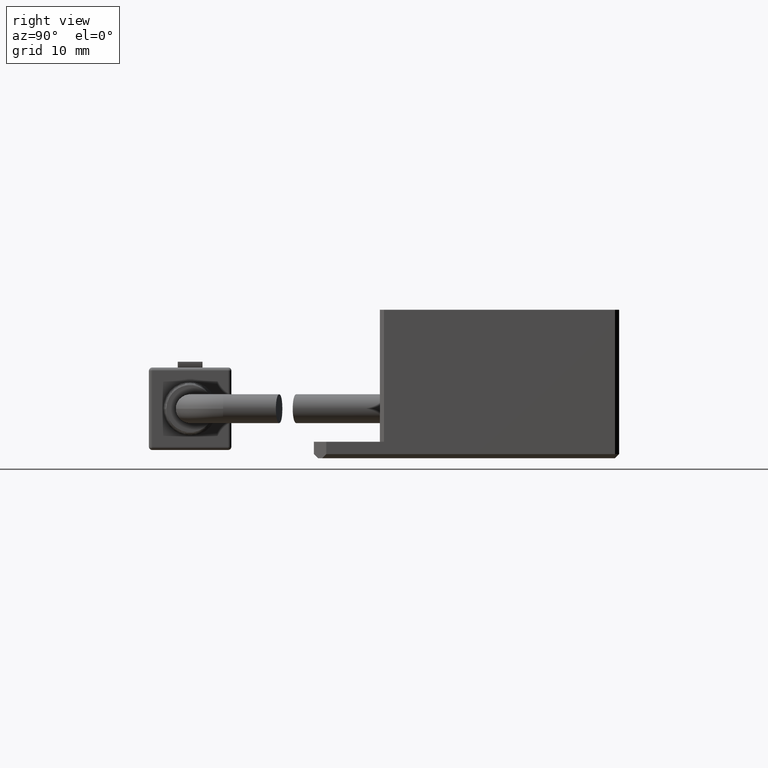
[diagram: clean part render]
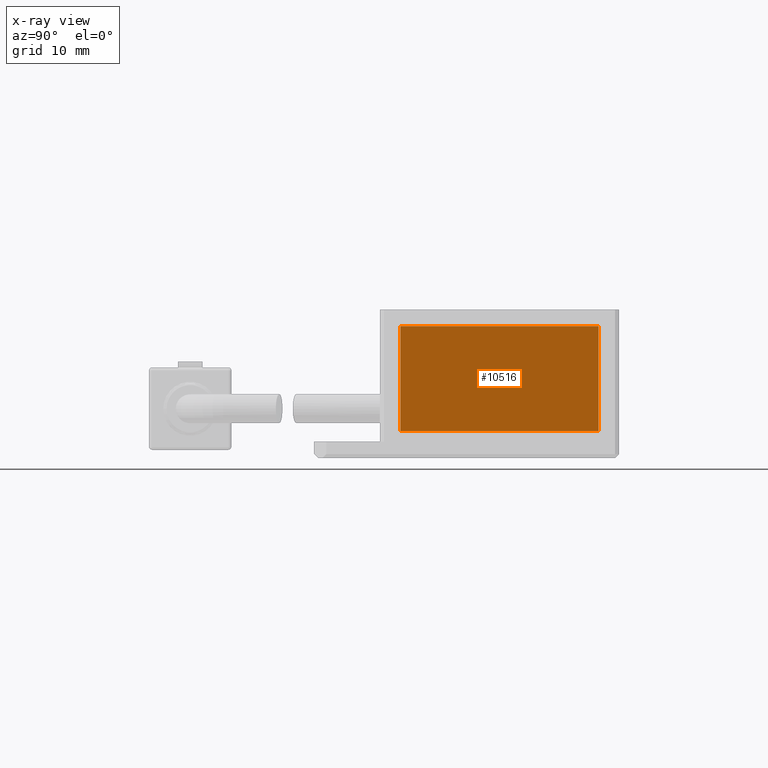
[diagram: x-ray — body ghosted, one internal face saturated and labeled with its STEP entity id]
A machine part, right view, then the same camera in x-ray: the body is ghosted and one INTERNAL B-rep face — a face not visible from any outside direction — is saturated and labeled: STEP entity #10516.
In plain terms, the highlighted planar face has unit normal (1, 0, 0).
Its self-contained STEP definition (entity closure, byte-faithful):
#128 = LINE ( 'NONE', #451, #6340 ) ;
#451 = CARTESIAN_POINT ( 'NONE',  ( 5.000000000000000900, 26.49999999999999600, 13.99999999999999800 ) ) ;
#530 = VERTEX_POINT ( 'NONE', #3649 ) ;
#611 = DIRECTION ( 'NONE',  ( -0.0000000000000000000, 0.0000000000000000000, -1.000000000000000000 ) ) ;
#994 = VECTOR ( 'NONE', #5800, 1000.000000000000000 ) ;
#1124 = VECTOR ( 'NONE', #8209, 1000.000000000000000 ) ;
#1166 = EDGE_CURVE ( 'NONE', #5227, #1184, #3393, .T. ) ;
#1184 = VERTEX_POINT ( 'NONE', #4821 ) ;
#1434 = EDGE_CURVE ( 'NONE', #1184, #8407, #5481, .T. ) ;
#1710 = EDGE_CURVE ( 'NONE', #530, #5227, #10714, .T. ) ;
#2050 = CARTESIAN_POINT ( 'NONE',  ( 5.000000000000000900, 2.499999999999998700, 13.99999999999999800 ) ) ;
#2131 = ORIENTED_EDGE ( 'NONE', *, *, #1710, .T. ) ;
#2492 = CARTESIAN_POINT ( 'NONE',  ( 5.000000000000000900, 26.49999999999999600, 1.300000000000000700 ) ) ;
#2891 = EDGE_CURVE ( 'NONE', #8407, #530, #128, .T. ) ;
#3027 = DIRECTION ( 'NONE',  ( -0.0000000000000000000, -0.0000000000000000000, 1.000000000000000000 ) ) ;
#3393 = LINE ( 'NONE', #5651, #1124 ) ;
#3649 = CARTESIAN_POINT ( 'NONE',  ( 5.000000000000000900, 26.49999999999999600, 13.99999999999999800 ) ) ;
#4175 = DIRECTION ( 'NONE',  ( 0.0000000000000000000, -1.000000000000000000, 0.0000000000000000000 ) ) ;
#4239 = VECTOR ( 'NONE', #4175, 1000.000000000000000 ) ;
#4544 = ORIENTED_EDGE ( 'NONE', *, *, #2891, .T. ) ;
#4568 = FACE_OUTER_BOUND ( 'NONE', #10627, .T. ) ;
#4821 = CARTESIAN_POINT ( 'NONE',  ( 5.000000000000000900, 2.499999999999998700, 1.300000000000000700 ) ) ;
#4937 = CARTESIAN_POINT ( 'NONE',  ( 5.000000000000000900, 27.99999999999999600, 1.300000000000000700 ) ) ;
#5227 = VERTEX_POINT ( 'NONE', #2050 ) ;
#5481 = LINE ( 'NONE', #4937, #994 ) ;
#5651 = CARTESIAN_POINT ( 'NONE',  ( 5.000000000000000900, 2.499999999999998700, 1.300000000000000700 ) ) ;
#5653 = PLANE ( 'NONE',  #7024 ) ;
#5687 = DIRECTION ( 'NONE',  ( 1.000000000000000000, 0.0000000000000000000, -0.0000000000000000000 ) ) ;
#5800 = DIRECTION ( 'NONE',  ( 0.0000000000000000000, 1.000000000000000000, 0.0000000000000000000 ) ) ;
#6340 = VECTOR ( 'NONE', #3027, 1000.000000000000000 ) ;
#7024 = AXIS2_PLACEMENT_3D ( 'NONE', #10763, #5687, #611 ) ;
#8209 = DIRECTION ( 'NONE',  ( -0.0000000000000000000, 0.0000000000000000000, -1.000000000000000000 ) ) ;
#8407 = VERTEX_POINT ( 'NONE', #2492 ) ;
#9231 = CARTESIAN_POINT ( 'NONE',  ( 5.000000000000000900, 27.99999999999999600, 13.99999999999999800 ) ) ;
#10333 = ORIENTED_EDGE ( 'NONE', *, *, #1166, .T. ) ;
#10516 = ADVANCED_FACE ( 'NONE', ( #4568 ), #5653, .T. ) ;
#10627 = EDGE_LOOP ( 'NONE', ( #2131, #10333, #10730, #4544 ) ) ;
#10714 = LINE ( 'NONE', #9231, #4239 ) ;
#10730 = ORIENTED_EDGE ( 'NONE', *, *, #1434, .T. ) ;
#10763 = CARTESIAN_POINT ( 'NONE',  ( 5.000000000000000900, 27.99999999999999600, 13.99999999999999800 ) ) ;